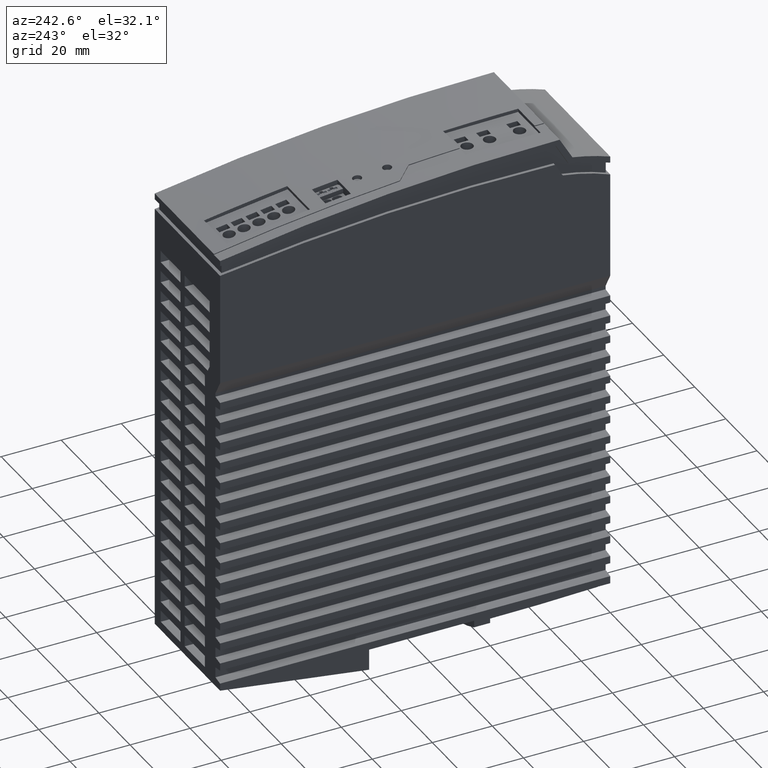
[diagram: clean part render]
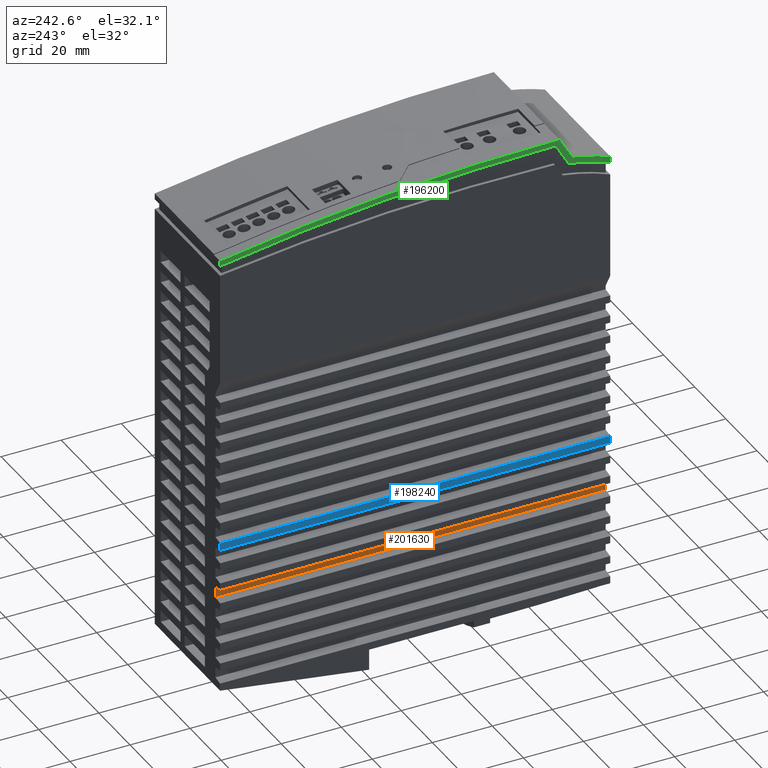
[diagram: same view with three faces highlighted in distinct colors, each labeled with its STEP entity id]
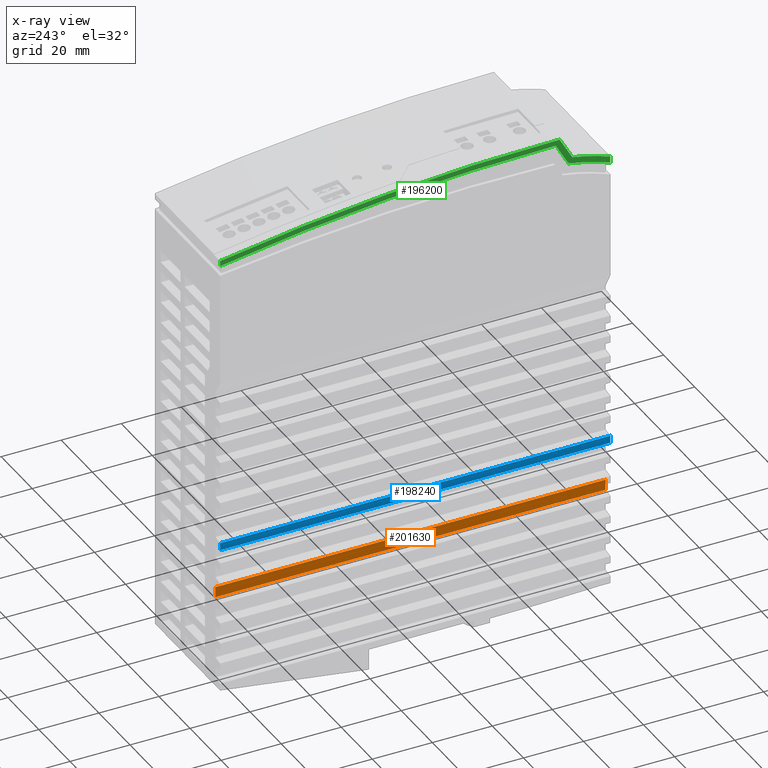
[diagram: x-ray of the same camera — body ghosted, the three highlighted faces saturated]
A machine part, auxiliary view with three faces highlighted in distinct colors.
The next image is the same camera in x-ray (body ghosted, the three faces saturated) — at least one of them is partly hidden behind the body in this view.
Their STEP definitions:

[orange] entity #201630 — the highlighted planar face has unit normal (1, 0, 0).
#28940=CARTESIAN_POINT('',(34.4865285868123,130.,-11.5));
#28950=VERTEX_POINT('',#28940);
#28980=CARTESIAN_POINT('',(128.90472881771,130.,-11.5));
#28990=DIRECTION('',(1.,0.,0.));
#29000=VECTOR('',#28990,1.);
#29010=LINE('',#28980,#29000);
#29020=CARTESIAN_POINT('',(30.9999999999996,130.,-11.5));
#29030=VERTEX_POINT('',#29020);
#29040=EDGE_CURVE('',#29030,#28950,#29010,.T.);
#86470=CARTESIAN_POINT('',(30.9999999999996,0.,-11.5));
#86480=VERTEX_POINT('',#86470);
#86510=CARTESIAN_POINT('',(128.90472881771,0.,-11.5));
#86520=DIRECTION('',(1.,0.,0.));
#86530=VECTOR('',#86520,1.);
#86540=LINE('',#86510,#86530);
#86550=CARTESIAN_POINT('',(34.4865285868123,0.,-11.5));
#86560=VERTEX_POINT('',#86550);
#86570=EDGE_CURVE('',#86480,#86560,#86540,.T.);
#201360=CARTESIAN_POINT('',(34.4865285868123,-13.0000024000001,-11.5));
#201370=DIRECTION('',(0.,1.,0.));
#201380=VECTOR('',#201370,1.);
#201390=LINE('',#201360,#201380);
#201400=EDGE_CURVE('',#86560,#28950,#201390,.T.);
#201470=CARTESIAN_POINT('',(30.9999999999996,-13.0000024000001,-11.5));
#201480=DIRECTION('',(0.,0.,-1.));
#201490=DIRECTION('',(1.,0.,0.));
#201500=AXIS2_PLACEMENT_3D('',#201470,#201480,#201490);
#201510=PLANE('',#201500);
#201520=ORIENTED_EDGE('',*,*,#201400,.T.);
#201530=ORIENTED_EDGE('',*,*,#86570,.T.);
#201540=CARTESIAN_POINT('',(30.9999999999996,-13.0000024000001,-11.5));
#201550=DIRECTION('',(0.,1.,0.));
#201560=VECTOR('',#201550,1.);
#201570=LINE('',#201540,#201560);
#201580=EDGE_CURVE('',#86480,#29030,#201570,.T.);
#201590=ORIENTED_EDGE('',*,*,#201580,.F.);
#201600=ORIENTED_EDGE('',*,*,#29040,.F.);
#201610=EDGE_LOOP('',(#201600,#201590,#201530,#201520));
#201620=FACE_OUTER_BOUND('',#201610,.T.);
#201630=ADVANCED_FACE('',(#201620),#201510,.F.);

[blue] entity #198240 — the highlighted planar face has unit normal (-1, 0, 0).
#26860=CARTESIAN_POINT('',(128.90472881771,130.,-8.5));
#26870=DIRECTION('',(-1.,0.,0.));
#26880=VECTOR('',#26870,1.);
#26890=LINE('',#26860,#26880);
#28260=CARTESIAN_POINT('',(51.4710190578743,130.,-8.5));
#28270=VERTEX_POINT('',#28260);
#28300=CARTESIAN_POINT('',(49.0155095289376,130.,-8.5));
#28310=VERTEX_POINT('',#28300);
#28320=EDGE_CURVE('',#28270,#28310,#26890,.T.);
#85230=CARTESIAN_POINT('',(128.90472881771,0.,-8.5));
#85240=DIRECTION('',(-1.,0.,0.));
#85250=VECTOR('',#85240,1.);
#85260=LINE('',#85230,#85250);
#87190=CARTESIAN_POINT('',(49.0155095289376,0.,-8.5));
#87200=VERTEX_POINT('',#87190);
#87230=CARTESIAN_POINT('',(51.4710190578743,0.,-8.5));
#87240=VERTEX_POINT('',#87230);
#87250=EDGE_CURVE('',#87240,#87200,#85260,.T.);
#196890=CARTESIAN_POINT('',(1.5,65.000000000069,-8.5));
#196900=DIRECTION('',(-0.,0.,1.));
#196910=DIRECTION('',(0.,-1.,0.));
#196920=AXIS2_PLACEMENT_3D('',#196890,#196900,#196910);
#196930=PLANE('',#196920);
#198080=ORIENTED_EDGE('',*,*,#87250,.F.);
#198090=CARTESIAN_POINT('',(49.0155095289376,64.9999998943551,-8.5));
#198100=DIRECTION('',(0.,-1.,0.));
#198110=VECTOR('',#198100,1.);
#198120=LINE('',#198090,#198110);
#198130=EDGE_CURVE('',#28310,#87200,#198120,.T.);
#198140=ORIENTED_EDGE('',*,*,#198130,.T.);
#198150=ORIENTED_EDGE('',*,*,#28320,.T.);
#198160=CARTESIAN_POINT('',(51.4710190578743,64.9999998943551,-8.5));
#198170=DIRECTION('',(0.,1.,0.));
#198180=VECTOR('',#198170,1.);
#198190=LINE('',#198160,#198180);
#198200=EDGE_CURVE('',#87240,#28270,#198190,.T.);
#198210=ORIENTED_EDGE('',*,*,#198200,.T.);
#198220=EDGE_LOOP('',(#198210,#198150,#198140,#198080));
#198230=FACE_OUTER_BOUND('',#198220,.T.);
#198240=ADVANCED_FACE('',(#198230),#196930,.T.);

[green] entity #196200 — the highlighted planar face has unit normal (-1, 0, 0).
#133880=CARTESIAN_POINT('',(157.998987853453,18.1541160391493,-8.5));
#133890=VERTEX_POINT('',#133880);
#134160=CARTESIAN_POINT('',(148.224498148597,130.,-8.5));
#134170=VERTEX_POINT('',#134160);
#134200=CARTESIAN_POINT('',(-500.,17.,-8.5));
#134210=DIRECTION('',(0.,0.,-1.));
#134220=DIRECTION('',(-1.,0.,0.));
#134230=AXIS2_PLACEMENT_3D('',#134200,#134210,#134220);
#134240=CIRCLE('',#134230,658.);
#134250=EDGE_CURVE('',#134170,#133890,#134240,.T.);
#134460=CARTESIAN_POINT('',(150.569044107833,13.8644360152317,-8.5));
#134470=VERTEX_POINT('',#134460);
#134520=CARTESIAN_POINT('',(128.90472881771,1.3565377439053,-8.5));
#134530=DIRECTION('',(0.866025403667339,0.500000000202823,0.));
#134540=VECTOR('',#134530,1.);
#134550=LINE('',#134520,#134540);
#134560=EDGE_CURVE('',#134470,#133890,#134550,.T.);
#134770=CARTESIAN_POINT('',(146.867696038368,7.105427357601E-14,-8.5));
#134780=VERTEX_POINT('',#134770);
#135070=CARTESIAN_POINT('',(78.53,25.67020257356,-8.5));
#135080=DIRECTION('',(0.,0.,-1.));
#135090=DIRECTION('',(-1.,0.,0.));
#135100=AXIS2_PLACEMENT_3D('',#135070,#135080,#135090);
#135110=CIRCLE('',#135100,73.);
#135120=EDGE_CURVE('',#134470,#134780,#135110,.T.);
#135520=CARTESIAN_POINT('',(149.000000000004,0.,-8.5));
#135530=VERTEX_POINT('',#135520);
#135580=CARTESIAN_POINT('',(78.52535719996,25.65783939084,-8.5));
#135590=DIRECTION('',(0.,0.,-1.));
#135600=DIRECTION('',(-1.,0.,0.));
#135610=AXIS2_PLACEMENT_3D('',#135580,#135590,#135600);
#135620=CIRCLE('',#135610,75.);
#135630=CARTESIAN_POINT('',(152.380000000004,12.6005909487722,-8.5));
#135640=VERTEX_POINT('',#135630);
#135650=EDGE_CURVE('',#135640,#135530,#135620,.T.);
#195170=CARTESIAN_POINT('',(149.998374592783,130.,-8.5));
#195180=VERTEX_POINT('',#195170);
#195210=CARTESIAN_POINT('',(128.90472881771,130.,-8.5));
#195220=DIRECTION('',(1.,0.,0.));
#195230=VECTOR('',#195220,1.);
#195240=LINE('',#195210,#195230);
#195250=EDGE_CURVE('',#134170,#195180,#195240,.T.);
#195470=CARTESIAN_POINT('',(128.90472881771,-0.952863187625638,-8.5));
#195480=DIRECTION('',(-0.866025403784429,-0.500000000000017,0.));
#195490=VECTOR('',#195480,1.);
#195500=LINE('',#195470,#195490);
#195510=CARTESIAN_POINT('',(159.745291614598,16.8529440451184,-8.5));
#195520=VERTEX_POINT('',#195510);
#195530=EDGE_CURVE('',#195520,#135640,#195500,.T.);
#195820=CARTESIAN_POINT('',(128.90472881771,0.,-8.5));
#195830=DIRECTION('',(1.,0.,0.));
#195840=VECTOR('',#195830,1.);
#195850=LINE('',#195820,#195840);
#195860=EDGE_CURVE('',#134780,#135530,#195850,.T.);
#195990=CARTESIAN_POINT('',(106.9903810568,0.,-8.5));
#196000=DIRECTION('',(0.,0.,1.));
#196010=DIRECTION('',(1.,0.,0.));
#196020=AXIS2_PLACEMENT_3D('',#195990,#196000,#196010);
#196030=PLANE('',#196020);
#196040=ORIENTED_EDGE('',*,*,#134560,.F.);
#196050=ORIENTED_EDGE('',*,*,#134250,.T.);
#196060=ORIENTED_EDGE('',*,*,#195250,.F.);
#196070=CARTESIAN_POINT('',(-500.154692,17.,-8.5));
#196080=DIRECTION('',(0.,0.,-1.));
#196090=DIRECTION('',(-1.,0.,0.));
#196100=AXIS2_PLACEMENT_3D('',#196070,#196080,#196090);
#196110=CIRCLE('',#196100,659.9);
#196120=EDGE_CURVE('',#195180,#195520,#196110,.T.);
#196130=ORIENTED_EDGE('',*,*,#196120,.F.);
#196140=ORIENTED_EDGE('',*,*,#195530,.F.);
#196150=ORIENTED_EDGE('',*,*,#135650,.F.);
#196160=ORIENTED_EDGE('',*,*,#195860,.T.);
#196170=ORIENTED_EDGE('',*,*,#135120,.T.);
#196180=EDGE_LOOP('',(#196170,#196160,#196150,#196140,#196130,#196060,
#196050,#196040));
#196190=FACE_OUTER_BOUND('',#196180,.T.);
#196200=ADVANCED_FACE('',(#196190),#196030,.T.);